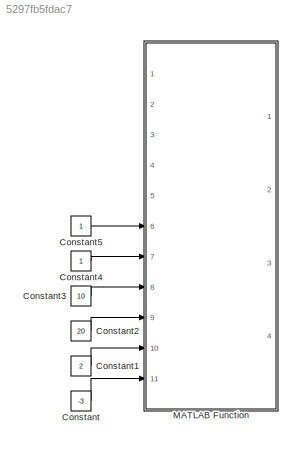
MODEL slx_5297fb5fdac7
KIND model
CONFIG AbsTol = auto
CONFIG EnableMultiTasking = off
CONFIG FixedStep = auto
CONFIG MaxStep = auto
CONFIG MinStep = auto
CONFIG RelTol = 1e-3
CONFIG SampleTimeConstraint = Unconstrained
CONFIG Solver = VariableStepAuto
CONFIG SolverName = VariableStepAuto
CONFIG StartTime = 0.0
CONFIG StopTime = 10.0
BLOCK [Constant] Constant
  Value = -3
BLOCK [Constant] Constant1
  Value = 2
BLOCK [Constant] Constant2
  Value = 20
BLOCK [Constant] Constant3
  Value = 10
BLOCK [Constant] Constant4
BLOCK [Constant] Constant5
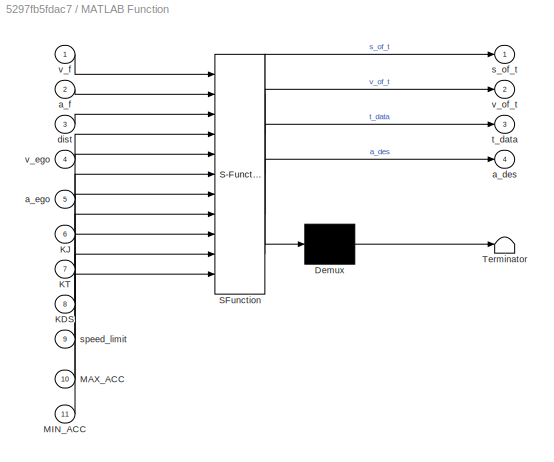
BLOCK [SubSystem] MATLAB Function
  ErrorFcn = Stateflow.Translate.translate
  PermitHierarchicalResolution = ExplicitOnly
  Ports = [11, 4]
  RequestExecContextInheritance = off
  SFBlockType = MATLAB Function
  TreatAsAtomicUnit = on
BLOCK [Demux] MATLAB Function/ Demux 
  Outputs = 1
  Ports = [1, 1]
BLOCK [S-Function] MATLAB Function/ SFunction 
  EnableBusSupport = on
  FunctionName = sf_sfun
  PortCounts = [11 5]
  Ports = [11, 5]
  SFcnIsStateOwnerBlock = off
  SFunctionDeploymentMode = off
  Tag = Stateflow S-Function 2
BLOCK [Terminator] MATLAB Function/ Terminator 
BLOCK [Inport] MATLAB Function/KDS
  IconDisplay = Port number
  Port = 8
BLOCK [Inport] MATLAB Function/KJ
  IconDisplay = Port number
  Port = 6
BLOCK [Inport] MATLAB Function/KT
  IconDisplay = Port number
  Port = 7
BLOCK [Inport] MATLAB Function/MAX_ACC
  IconDisplay = Port number
  Port = 10
BLOCK [Inport] MATLAB Function/MIN_ACC
  IconDisplay = Port number
  Port = 11
BLOCK [Outport] MATLAB Function/a_des
  IconDisplay = Port number
  Port = 4
BLOCK [Inport] MATLAB Function/a_ego
  IconDisplay = Port number
  Port = 5
BLOCK [Inport] MATLAB Function/a_f
  IconDisplay = Port number
  Port = 2
BLOCK [Inport] MATLAB Function/dist
  IconDisplay = Port number
  Port = 3
BLOCK [Outport] MATLAB Function/s_of_t
  IconDisplay = Port number
BLOCK [Inport] MATLAB Function/speed_limit
  IconDisplay = Port number
  Port = 9
BLOCK [Outport] MATLAB Function/t_data
  IconDisplay = Port number
  Port = 3
BLOCK [Inport] MATLAB Function/v_ego
  IconDisplay = Port number
  Port = 4
BLOCK [Inport] MATLAB Function/v_f
  IconDisplay = Port number
BLOCK [Outport] MATLAB Function/v_of_t
  IconDisplay = Port number
  Port = 2
LINE Constant1:1 -> MATLAB Function:10
LINE Constant2:1 -> MATLAB Function:9
LINE Constant3:1 -> MATLAB Function:8
LINE Constant4:1 -> MATLAB Function:7
LINE Constant5:1 -> MATLAB Function:6
LINE Constant:1 -> MATLAB Function:11
CHART MATLAB Function states=1 transitions=1
  STATE_LABEL 'eML_blk_kernel()'
  STATE_LABEL 'SCRIPT:\nfunction [s_of_t, v_of_t, t_data, a_des] = acc_planning(v_f, a_f, dist, v_ego, a_ego, KJ, KT, KDS, speed_limit, MAX_ACC, MIN_ACC)\nclc\nclear all\nclose all\n\n\nv_f = 10;\na_f = 0;\ndist = 20;\nv_ego = 7;\na_ego = 0;\nKJ = 1;\nKT = 1;\nKDS = 10;\nspeed_limit= 20;\nMAX_ACC = 2;\nMIN_ACC = -3;\n\n\n[s_of_t, v_of_t,t_data] = acc_planning(v_f,a_f,dist,v_ego,a_ego,KJ,KT,KDS,speed_limit,MAX_ACC, MIN_ACC);\n\n\nfigur...<+3608ch>'
